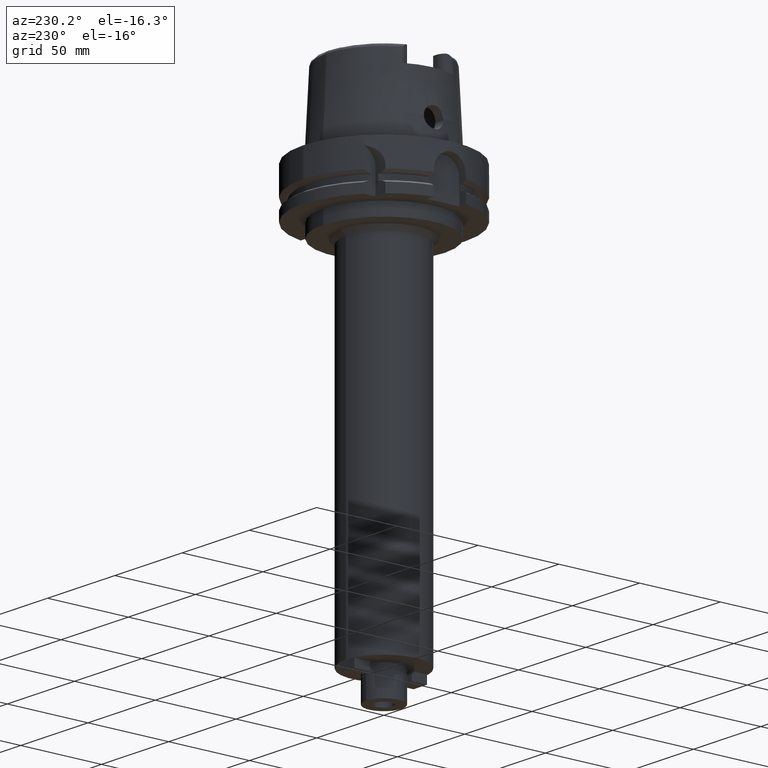
[diagram: clean part render]
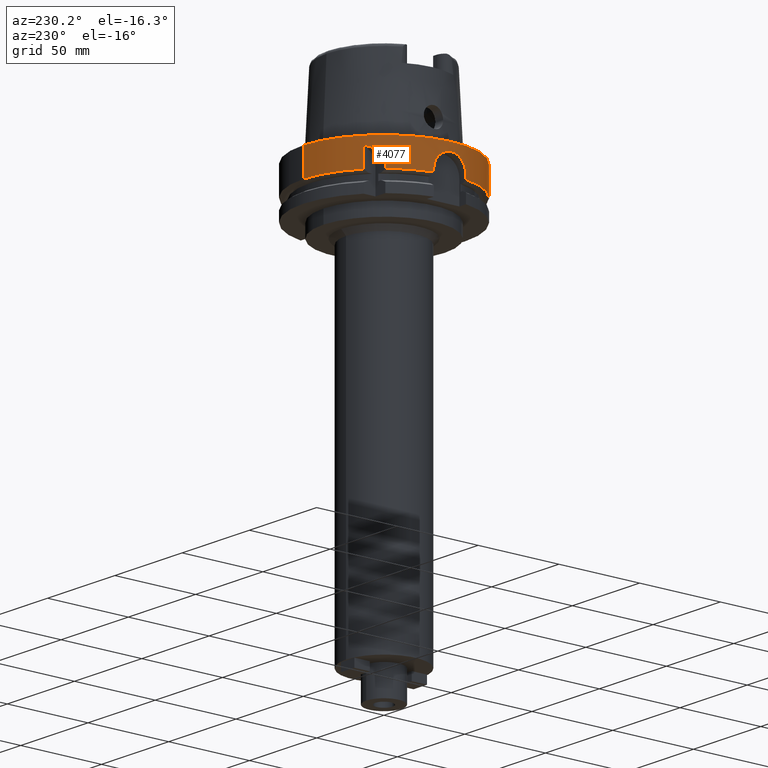
[diagram: same view with one face highlighted and labeled with its STEP entity id]
A machine part, auxiliary view. The second image highlights one B-rep face of the part: STEP entity #4077.
In plain terms, the highlighted cylindrical surface (partial cylindrical patch) has radius 50 mm, axis along (0, 0, 1).
Its self-contained STEP definition (entity closure, byte-faithful):
#1371=CARTESIAN_POINT('',(-3.150000355959E1,3.882975374305E1,
-1.675239179145E1));
#1556=CARTESIAN_POINT('',(-3.882975730068E1,3.149999917413E1,
-1.675240773890E1));
#1580=DIRECTION('',(-3.028823767049E-7,-2.457085509676E-7,-9.999999999999E-1));
#1581=VECTOR('',#1580,1.175239179145E1);
#1582=CARTESIAN_POINT('',(-3.15E1,3.882975663071E1,-5.000000000003E0));
#1583=LINE('',#1582,#1581);
#1587=DIRECTION('',(0.E0,2.969006079282E-14,-1.E0));
#1588=VECTOR('',#1587,1.675240473581E1);
#1589=CARTESIAN_POINT('',(0.E0,-5.E1,5.305385760342E-13));
#1590=LINE('',#1589,#1588);
#1594=DIRECTION('',(3.933032361779E-13,-2.432803522750E-14,1.E0));
#1595=VECTOR('',#1594,1.752404735809E0);
#1596=CARTESIAN_POINT('',(-4.898979485566E1,-1.E1,-1.675240473581E1));
#1597=LINE('',#1596,#1595);
#1601=DIRECTION('',(-4.014125812538E-13,-2.635537149646E-14,-1.E0));
#1602=VECTOR('',#1601,1.752404735809E0);
#1603=CARTESIAN_POINT('',(-4.898979485566E1,1.E1,-1.5E1));
#1604=LINE('',#1603,#1602);
#1608=DIRECTION('',(3.166955095345E-7,3.903884141555E-7,9.999999999999E-1));
#1609=VECTOR('',#1608,2.115509879686E0);
#1610=CARTESIAN_POINT('',(-3.882975730068E1,3.149999917413E1,
-1.675240773890E1));
#1611=LINE('',#1610,#1609);
#1615=CARTESIAN_POINT('',(-3.882975663071E1,3.15E1,-1.463689785921E1));
#1616=CARTESIAN_POINT('',(-3.882975663071E1,3.15E1,-1.430491949524E1));
#1617=CARTESIAN_POINT('',(-3.880306478879E1,3.153294468889E1,
-1.364353342562E1));
#1618=CARTESIAN_POINT('',(-3.868258748434E1,3.168088215665E1,
-1.265723915061E1));
#1619=CARTESIAN_POINT('',(-3.847868870930E1,3.192865717437E1,
-1.168251079835E1));
#1620=CARTESIAN_POINT('',(-3.818842493816E1,3.227589971702E1,
-1.073007040944E1));
#1621=CARTESIAN_POINT('',(-3.780485623475E1,3.272517101970E1,
-9.803682052053E0));
#1622=CARTESIAN_POINT('',(-3.732213740494E1,3.327573323572E1,
-8.915562750425E0));
#1623=CARTESIAN_POINT('',(-3.672694821545E1,3.393287597097E1,
-8.069612958350E0));
#1624=CARTESIAN_POINT('',(-3.601006067847E1,3.469437403863E1,
-7.282030174415E0));
#1625=CARTESIAN_POINT('',(-3.515374735404E1,3.556384233907E1,
-6.562214660726E0));
#1626=CARTESIAN_POINT('',(-3.413841070690E1,3.654209155660E1,
-5.925529456637E0));
#1627=CARTESIAN_POINT('',(-3.294316049578E1,3.762629276837E1,
-5.390192036394E0));
#1628=CARTESIAN_POINT('',(-3.200587551523E1,3.841937345779E1,
-5.113711171622E0));
#1629=CARTESIAN_POINT('',(-3.15E1,3.882975663071E1,-5.000000000003E0));
#1652=CARTESIAN_POINT('',(0.E0,0.E0,-1.675240473581E1));
#1653=DIRECTION('',(0.E0,0.E0,1.E0));
#1654=DIRECTION('',(0.E0,1.E0,0.E0));
#1655=AXIS2_PLACEMENT_3D('',#1652,#1653,#1654);
#1809=DIRECTION('',(0.E0,-2.969006079282E-14,-1.E0));
#1810=VECTOR('',#1809,1.675240473581E1);
#1811=CARTESIAN_POINT('',(0.E0,5.E1,5.305385760342E-13));
#1812=LINE('',#1811,#1810);
#1883=CARTESIAN_POINT('',(0.E0,0.E0,-1.675240473581E1));
#1884=DIRECTION('',(0.E0,0.E0,1.E0));
#1885=DIRECTION('',(-9.797958971133E-1,-2.E-1,0.E0));
#1886=AXIS2_PLACEMENT_3D('',#1883,#1884,#1885);
#2037=CARTESIAN_POINT('',(0.E0,0.E0,6.252776074689E-13));
#2038=DIRECTION('',(0.E0,0.E0,-1.E0));
#2039=DIRECTION('',(0.E0,-1.E0,0.E0));
#2040=AXIS2_PLACEMENT_3D('',#2037,#2038,#2039);
#2069=CARTESIAN_POINT('',(-4.898979485566E1,1.E1,-1.5E1));
#2070=CARTESIAN_POINT('',(-4.898979485566E1,1.E1,-1.420415480175E1));
#2071=CARTESIAN_POINT('',(-4.902948838783E1,9.809112191187E0,
-1.260616475912E1));
#2072=CARTESIAN_POINT('',(-4.919619668178E1,8.952747141563E0,
-1.032786728375E1));
#2073=CARTESIAN_POINT('',(-4.943361334887E1,7.564351754138E0,
-8.308025230840E0));
#2074=CARTESIAN_POINT('',(-4.968504968232E1,5.724729971083E0,
-6.680049545721E0));
#2075=CARTESIAN_POINT('',(-4.989058025444E1,3.559308890328E0,
-5.550485484550E0));
#2076=CARTESIAN_POINT('',(-5.000467870777E1,1.205518687387E0,
-4.975888750211E0));
#2077=CARTESIAN_POINT('',(-5.000461128163E1,-1.208484385323E0,
-4.976256508096E0));
#2078=CARTESIAN_POINT('',(-4.989038546918E1,-3.561993298033E0,
-5.551493583320E0));
#2079=CARTESIAN_POINT('',(-4.968476413920E1,-5.727177350642E0,
-6.681741411435E0));
#2080=CARTESIAN_POINT('',(-4.943331756196E1,-7.566228970344E0,
-8.310132347102E0));
#2081=CARTESIAN_POINT('',(-4.919592776258E1,-8.954228873786E0,
-1.033067737035E1));
#2082=CARTESIAN_POINT('',(-4.902936827355E1,-9.809623877367E0,
-1.260874690530E1));
#2083=CARTESIAN_POINT('',(-4.898979485566E1,-1.E1,-1.420518811916E1));
#2084=CARTESIAN_POINT('',(-4.898979485566E1,-1.E1,-1.5E1));
#2103=CARTESIAN_POINT('',(0.E0,0.E0,-1.675240473581E1));
#2104=DIRECTION('',(0.E0,0.E0,1.E0));
#2105=DIRECTION('',(-7.765951326142E-1,6.3E-1,0.E0));
#2106=AXIS2_PLACEMENT_3D('',#2103,#2104,#2105);
#2111=CARTESIAN_POINT('',(-4.898979485566E1,1.E1,-1.675240473581E1));
#2675=VERTEX_POINT('',#1371);
#2676=CARTESIAN_POINT('',(-3.15E1,3.882975663071E1,-5.000000000003E0));
#2677=VERTEX_POINT('',#2676);
#2696=CARTESIAN_POINT('',(-4.898979485566E1,-1.E1,-1.5E1));
#2697=VERTEX_POINT('',#2696);
#2698=CARTESIAN_POINT('',(-4.898979485566E1,-1.E1,-1.675240473581E1));
#2699=VERTEX_POINT('',#2698);
#2718=VERTEX_POINT('',#2111);
#2719=CARTESIAN_POINT('',(-4.898979485566E1,1.E1,-1.5E1));
#2720=VERTEX_POINT('',#2719);
#2759=CARTESIAN_POINT('',(0.E0,-5.E1,-1.675240473581E1));
#2760=VERTEX_POINT('',#2759);
#2764=CARTESIAN_POINT('',(0.E0,5.E1,-1.675240473581E1));
#2765=VERTEX_POINT('',#2764);
#2766=VERTEX_POINT('',#1556);
#2767=CARTESIAN_POINT('',(0.E0,5.E1,5.305385760342E-13));
#2768=VERTEX_POINT('',#2767);
#2769=CARTESIAN_POINT('',(0.E0,-5.E1,6.252776074689E-13));
#2770=VERTEX_POINT('',#2769);
#2771=CARTESIAN_POINT('',(-3.882975663071E1,3.15E1,-1.463689785921E1));
#2772=VERTEX_POINT('',#2771);
#4051=CARTESIAN_POINT('',(0.E0,0.E0,-2.839E2));
#4052=DIRECTION('',(0.E0,0.E0,1.E0));
#4053=DIRECTION('',(0.E0,1.E0,0.E0));
#4054=AXIS2_PLACEMENT_3D('',#4051,#4052,#4053);
#4055=CYLINDRICAL_SURFACE('',#4054,5.E1);
#4056=ORIENTED_EDGE('',*,*,#3819,.T.);
#4058=ORIENTED_EDGE('',*,*,#4057,.F.);
#4060=ORIENTED_EDGE('',*,*,#4059,.F.);
#4062=ORIENTED_EDGE('',*,*,#4061,.F.);
#4064=ORIENTED_EDGE('',*,*,#4063,.T.);
#4066=ORIENTED_EDGE('',*,*,#4065,.F.);
#4067=ORIENTED_EDGE('',*,*,#3942,.T.);
#4069=ORIENTED_EDGE('',*,*,#4068,.F.);
#4070=ORIENTED_EDGE('',*,*,#3992,.T.);
#4072=ORIENTED_EDGE('',*,*,#4071,.F.);
#4073=ORIENTED_EDGE('',*,*,#4023,.T.);
#4074=ORIENTED_EDGE('',*,*,#4044,.T.);
#4075=EDGE_LOOP('',(#4056,#4058,#4060,#4062,#4064,#4066,#4067,#4069,#4070,#4072,
#4073,#4074));
#4076=FACE_OUTER_BOUND('',#4075,.F.);
#1630=B_SPLINE_CURVE_WITH_KNOTS('',3,(#1615,#1616,#1617,#1618,#1619,#1620,#1621,
#1622,#1623,#1624,#1625,#1626,#1627,#1628,#1629),.UNSPECIFIED.,.F.,.F.,(4,1,1,1,
1,1,1,1,1,1,1,1,4),(0.E0,8.333333333333E-2,1.666666666667E-1,2.5E-1,
3.333333333333E-1,4.166666666667E-1,5.E-1,5.833333333333E-1,6.666666666667E-1,
7.5E-1,8.333333333333E-1,9.166666666667E-1,1.E0),.UNSPECIFIED.);
#1656=CIRCLE('',#1655,5.E1);
#1887=CIRCLE('',#1886,5.E1);
#2041=CIRCLE('',#2040,5.E1);
#2085=B_SPLINE_CURVE_WITH_KNOTS('',3,(#2069,#2070,#2071,#2072,#2073,#2074,#2075,
#2076,#2077,#2078,#2079,#2080,#2081,#2082,#2083,#2084),.UNSPECIFIED.,.F.,.F.,(4,
1,1,1,1,1,1,1,1,1,1,1,1,4),(0.E0,7.692307692308E-2,1.538461538462E-1,
2.307692307692E-1,3.076923076923E-1,3.846153846154E-1,4.615384615385E-1,
5.384615384615E-1,6.153846153846E-1,6.923076923077E-1,7.692307692308E-1,
8.461538461538E-1,9.230769230769E-1,1.E0),.UNSPECIFIED.);
#2107=CIRCLE('',#2106,5.E1);
#3819=EDGE_CURVE('',#2677,#2675,#1583,.T.);
#3942=EDGE_CURVE('',#2699,#2697,#1597,.T.);
#3992=EDGE_CURVE('',#2720,#2718,#1604,.T.);
#4023=EDGE_CURVE('',#2766,#2772,#1611,.T.);
#4044=EDGE_CURVE('',#2772,#2677,#1630,.T.);
#4057=EDGE_CURVE('',#2765,#2675,#1656,.T.);
#4059=EDGE_CURVE('',#2768,#2765,#1812,.T.);
#4061=EDGE_CURVE('',#2770,#2768,#2041,.T.);
#4063=EDGE_CURVE('',#2770,#2760,#1590,.T.);
#4065=EDGE_CURVE('',#2699,#2760,#1887,.T.);
#4068=EDGE_CURVE('',#2720,#2697,#2085,.T.);
#4071=EDGE_CURVE('',#2766,#2718,#2107,.T.);
#4077=ADVANCED_FACE('',(#4076),#4055,.T.);